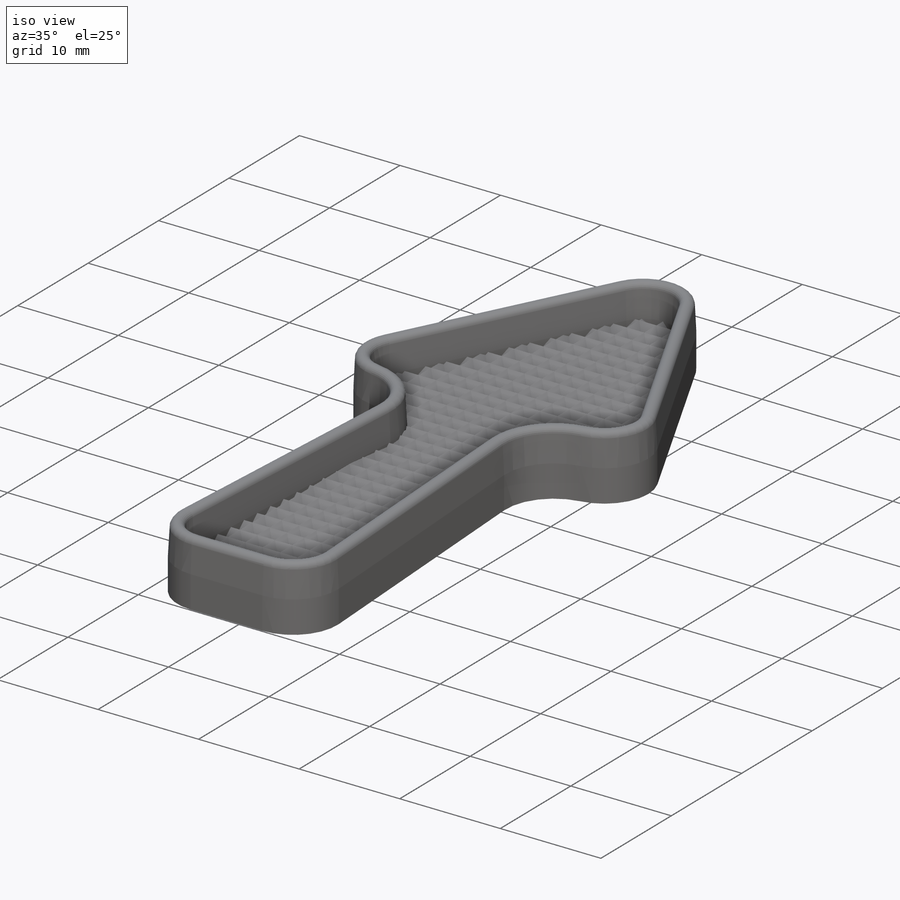
[diagram: iso view]
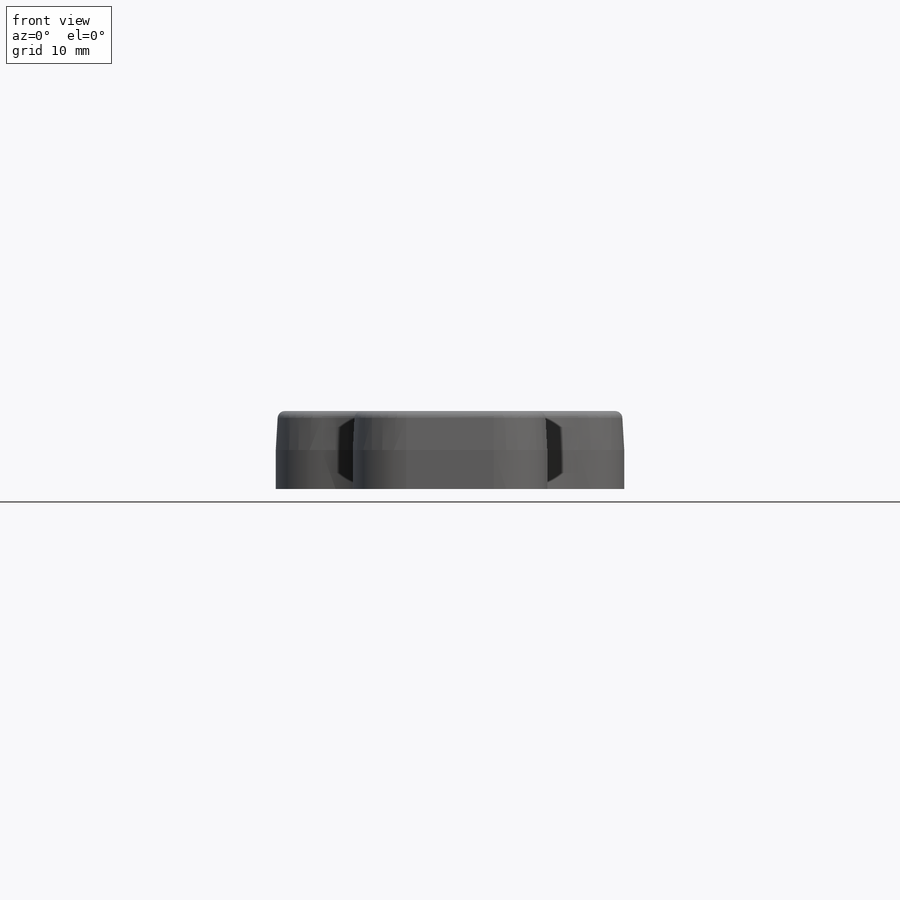
[diagram: front view]
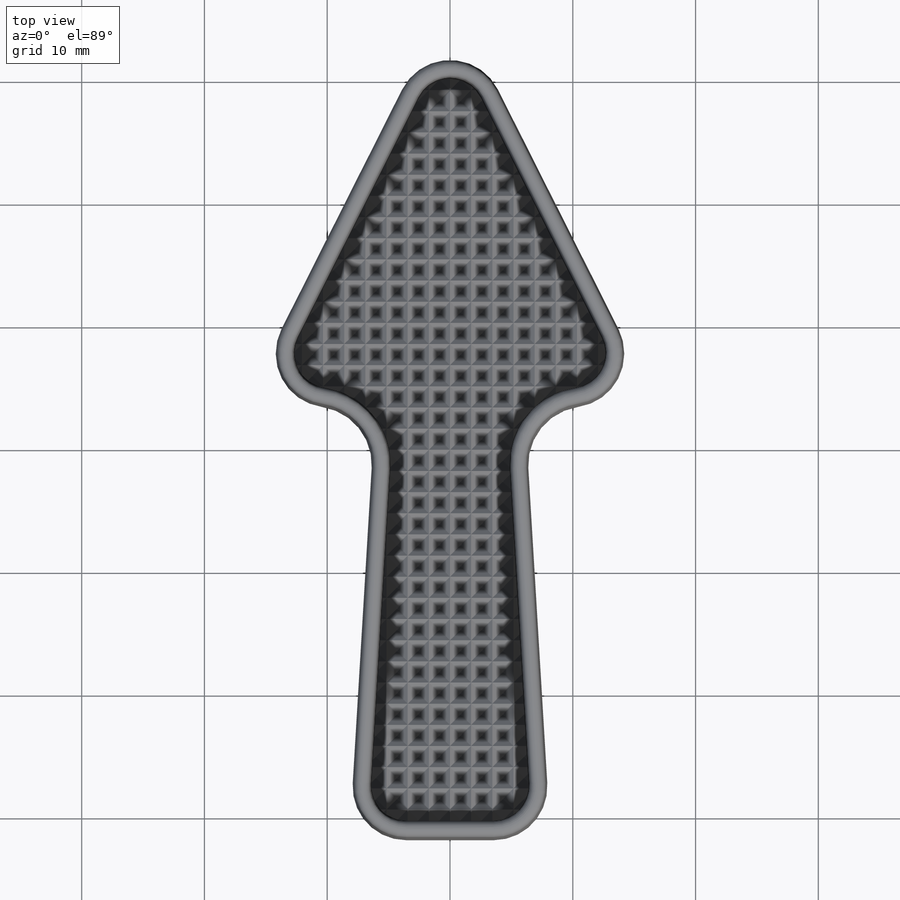
[diagram: top view]
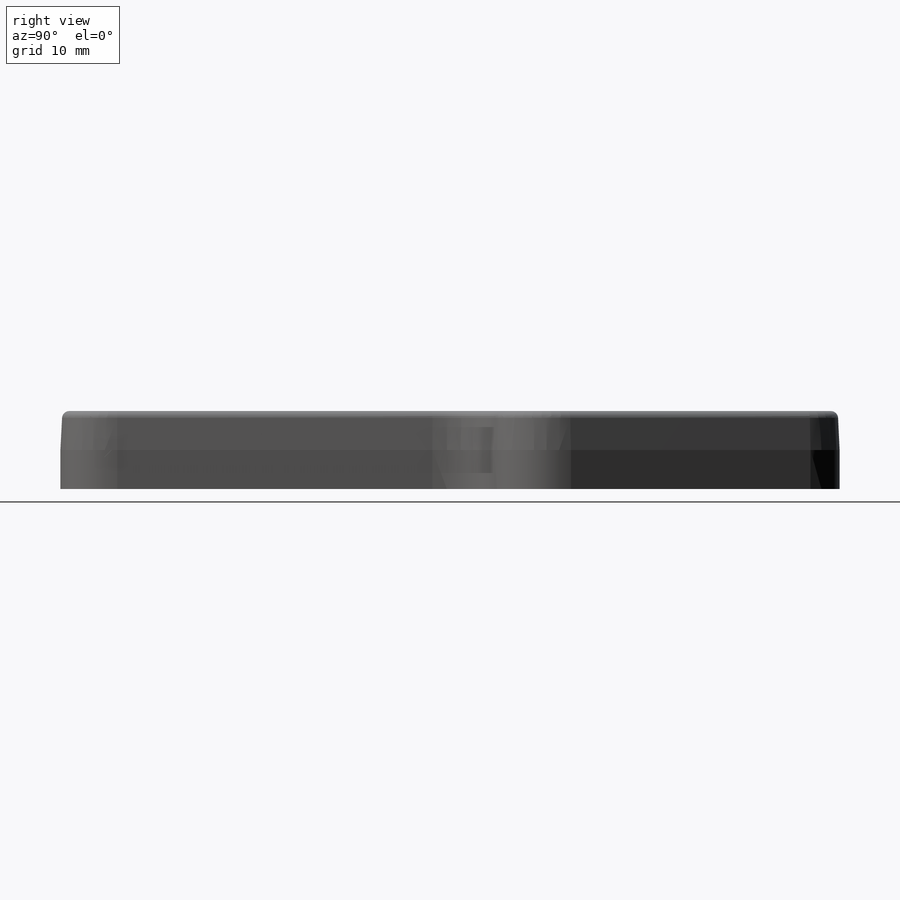
[diagram: right view]
SOLIDWORKS PART (.sldprt)
format: sldprt  version: not decoded by parser v0  size: 2,468,864 bytes
history: native  units: mm
features: sketch x8, extrude x4, pattern_linear x2, material x1, cut_extrude x1, fillet x1 (+12 scaffold rows collapsed)
feature tree (29):
  scaffold x12  (default folders/planes/origin — collapsed)
  material  "Material <not specified>"
  sketch  "Sketch1"  dims[c1.D2=~2.097246mm c2.D2=90.0deg c2.D3=~1.723568mm c2.D4=~1.72339mm c2.D5=~2.313305mm c2.D6=~0.861695mm c2.D1=3.175mm]
  sketch  "Sketch2"  dims[D1=31.75mm D2=63.5mm]
  extrude  "Boss-Extrude1"  Depth=2.3368mm
  sketch  "Sketch3"
  extrude  "Boss-Extrude2"  Depth=31.75mm
  sketch  "Sketch4"  dims[c1.D1=~1.119576mm c2.D1=90.0deg c2.D2=~1.04507mm]
  extrude  "Boss-Extrude3"  Depth=15.875mm
  pattern_linear  "LPattern1"  Count1=19 Count2=19 Spacing1=1.723568mm Spacing2=1.723568mm
  pattern_linear  "LPattern2"  Count1=10 Count2=10 Spacing1=1.723568mm Spacing2=1.723568mm
  sketch  "Sketch6"
  cut_extrude  "Cut-Extrude1"  Depth=15.875mm
  sketch  "Sketch7"  dims[c1.D1=0.0mm c2.D1=3.175mm c2.D5=1.524mm c2.D6=2.54mm c2.D7=5.0mm]
  sketch  "Sketch8"  dims[D1=0.0mm D2=1.524mm]
  extrude  "Boss-Extrude4"  Depth=3.175mm
  fillet  "Fillet1"  Radius=0.5842mm
  sketch  "Sketch9 - offset .005"  dims[D1=0.127mm]
decode coverage: 14 of 16 modeling features carry decoded parameters
note: ~ marks probable driven/reference dimensions
note: suppression state not decoded; provenance and decode notes live in map.json
